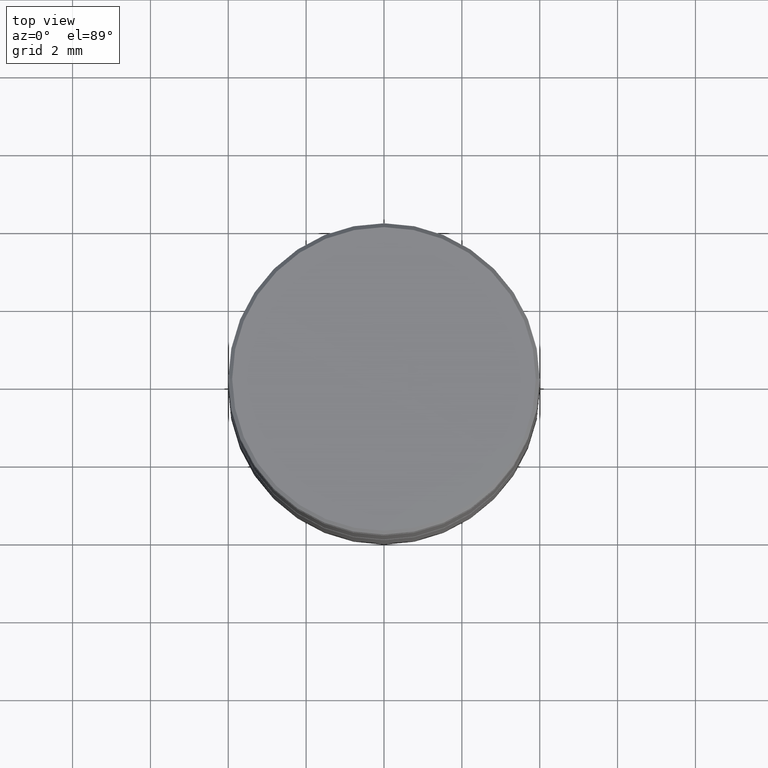
[diagram: clean part render]
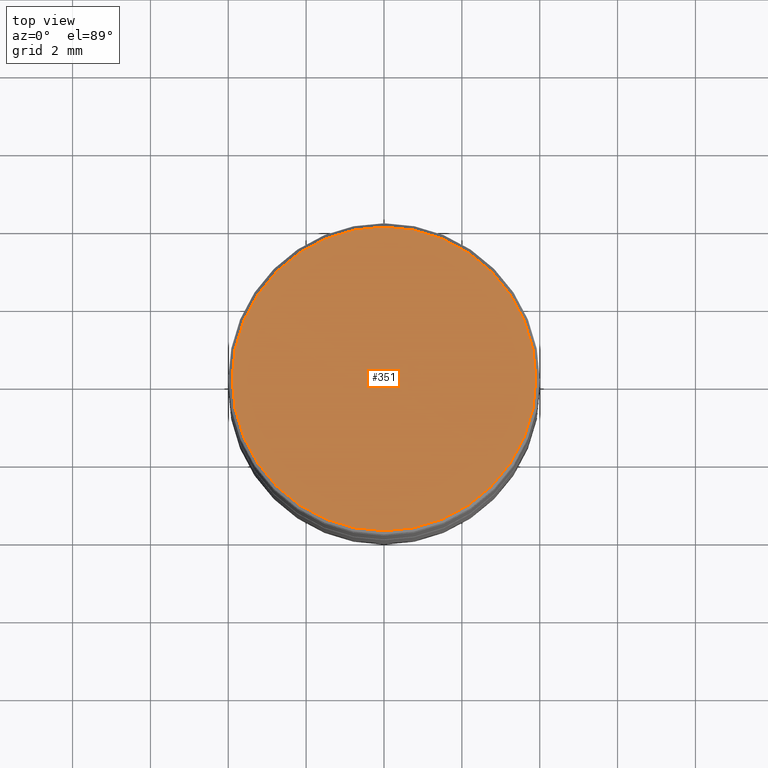
[diagram: same view with one face highlighted and labeled with its STEP entity id]
A machine part, top view. The second image highlights one B-rep face of the part: STEP entity #351.
In plain terms, the highlighted planar face has unit normal (0, -0, 1).
Its self-contained STEP definition (entity closure, byte-faithful):
#108 = DIRECTION ( 'NONE',  ( -0.000000000000000000, -0.000000000000000000, 1.000000000000000000 ) ) ;
#131 = DIRECTION ( 'NONE',  ( 1.000000000000000000, 0.000000000000000000, 0.000000000000000000 ) ) ;
#147 = ORIENTED_EDGE ( 'NONE', *, *, #653, .T. ) ;
#236 = CARTESIAN_POINT ( 'NONE',  ( 3.899999999999999023, 4.837354856632044071E-16, 0.000000000000000000 ) ) ;
#290 = AXIS2_PLACEMENT_3D ( 'NONE', #540, #573, #131 ) ;
#343 = CIRCLE ( 'NONE', #998, 3.899999999999999023 ) ;
#351 = ADVANCED_FACE ( 'NONE', ( #814 ), #432, .T. ) ;
#422 = CIRCLE ( 'NONE', #290, 3.899999999999999023 ) ;
#432 = PLANE ( 'NONE',  #889 ) ;
#540 = CARTESIAN_POINT ( 'NONE',  ( 0.000000000000000000, 0.000000000000000000, 0.000000000000000000 ) ) ;
#543 = EDGE_CURVE ( 'NONE', #894, #1085, #343, .T. ) ;
#573 = DIRECTION ( 'NONE',  ( -0.000000000000000000, -0.000000000000000000, 1.000000000000000000 ) ) ;
#616 = CARTESIAN_POINT ( 'NONE',  ( 0.000000000000000000, 0.000000000000000000, 0.000000000000000000 ) ) ;
#637 = EDGE_LOOP ( 'NONE', ( #147, #890 ) ) ;
#653 = EDGE_CURVE ( 'NONE', #1085, #894, #422, .T. ) ;
#784 = DIRECTION ( 'NONE',  ( 1.000000000000000000, 0.000000000000000000, 0.000000000000000000 ) ) ;
#786 = CARTESIAN_POINT ( 'NONE',  ( -3.899999999999999023, 0.000000000000000000, 0.000000000000000000 ) ) ;
#814 = FACE_OUTER_BOUND ( 'NONE', #637, .T. ) ;
#889 = AXIS2_PLACEMENT_3D ( 'NONE', #616, #970, #784 ) ;
#890 = ORIENTED_EDGE ( 'NONE', *, *, #543, .T. ) ;
#894 = VERTEX_POINT ( 'NONE', #236 ) ;
#914 = CARTESIAN_POINT ( 'NONE',  ( 0.000000000000000000, 0.000000000000000000, 0.000000000000000000 ) ) ;
#970 = DIRECTION ( 'NONE',  ( 0.000000000000000000, -0.000000000000000000, 1.000000000000000000 ) ) ;
#998 = AXIS2_PLACEMENT_3D ( 'NONE', #914, #108, #1007 ) ;
#1007 = DIRECTION ( 'NONE',  ( 1.000000000000000000, 0.000000000000000000, 0.000000000000000000 ) ) ;
#1085 = VERTEX_POINT ( 'NONE', #786 ) ;